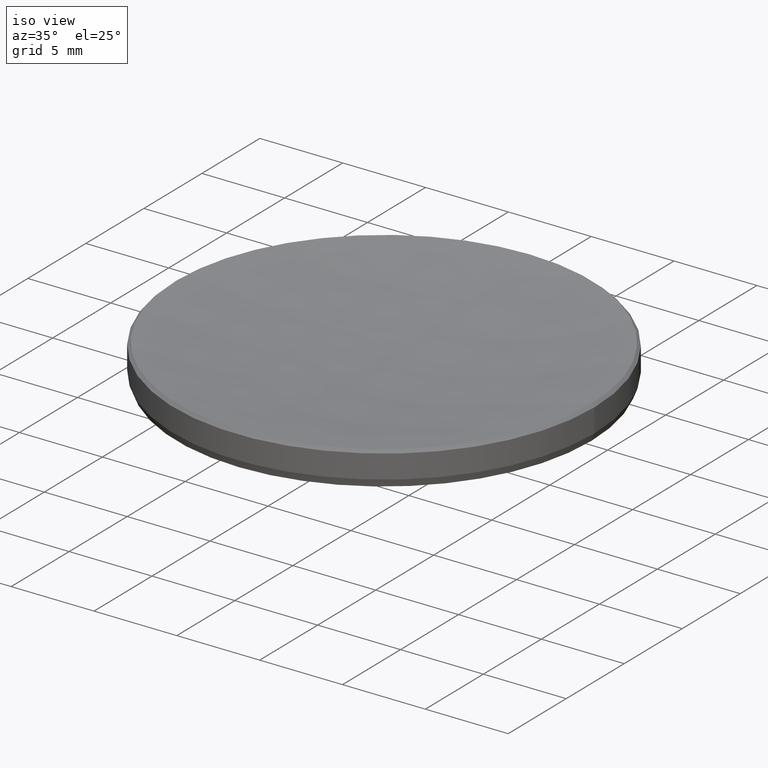
[diagram: clean part render]
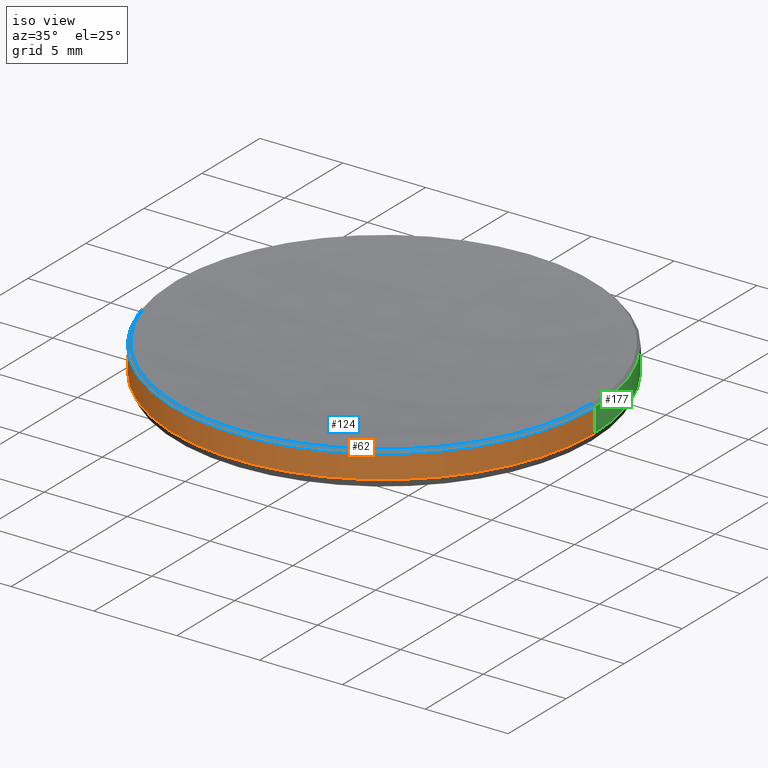
[diagram: same view with three faces highlighted in distinct colors, each labeled with its STEP entity id]
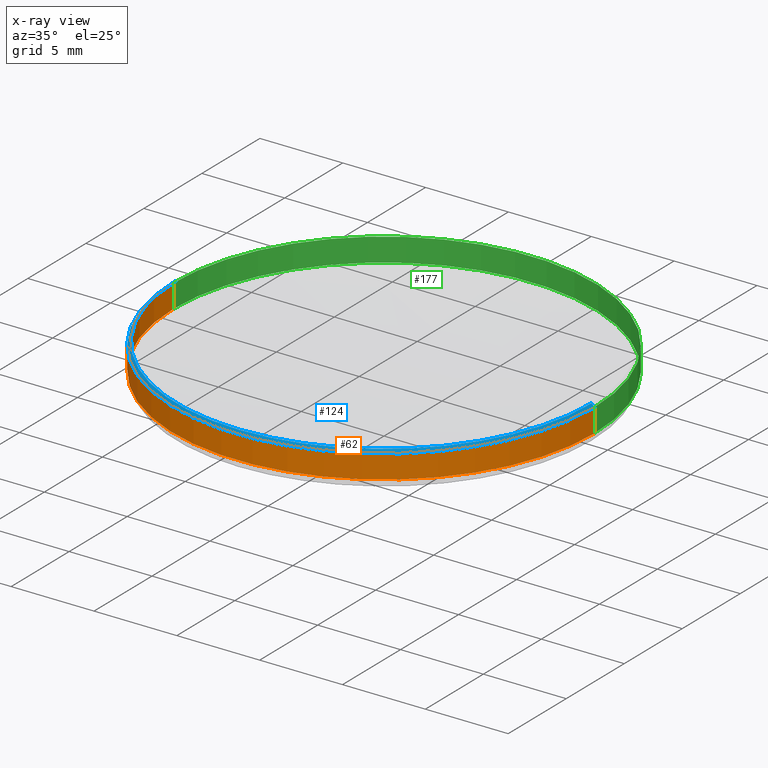
[diagram: x-ray of the same camera — body ghosted, the three highlighted faces saturated]
A machine part, iso view with three faces highlighted in distinct colors.
The next image is the same camera in x-ray (body ghosted, the three faces saturated) — at least one of them is partly hidden behind the body in this view.
Their STEP definitions:

[orange] entity #62 — the highlighted cylindrical surface (partial cylindrical patch) has radius 12.7 mm, axis along (-0, -0, -1).
#12 = DIRECTION ( 'NONE',  ( -1.000000000000000000, 0.000000000000000000, 0.000000000000000000 ) ) ;
#36 = FACE_OUTER_BOUND ( 'NONE', #147, .T. ) ;
#44 = CARTESIAN_POINT ( 'NONE',  ( -12.69999999999999929, 0.000000000000000000, 10.00000000000000000 ) ) ;
#46 = DIRECTION ( 'NONE',  ( 1.000000000000000000, 0.000000000000000000, 0.000000000000000000 ) ) ;
#47 = DIRECTION ( 'NONE',  ( -0.000000000000000000, -0.000000000000000000, -1.000000000000000000 ) ) ;
#51 = ORIENTED_EDGE ( 'NONE', *, *, #286, .T. ) ;
#55 = ORIENTED_EDGE ( 'NONE', *, *, #238, .T. ) ;
#60 = CARTESIAN_POINT ( 'NONE',  ( 12.69999999999999929, 1.555301434917138433E-15, 5.799999999999999822 ) ) ;
#61 = DIRECTION ( 'NONE',  ( -0.000000000000000000, -0.000000000000000000, -1.000000000000000000 ) ) ;
#62 = ADVANCED_FACE ( 'NONE', ( #36 ), #261, .T. ) ;
#69 = AXIS2_PLACEMENT_3D ( 'NONE', #236, #61, #12 ) ;
#70 = CARTESIAN_POINT ( 'NONE',  ( 12.69999999999999929, 1.555301434917138433E-15, 10.00000000000000000 ) ) ;
#71 = CARTESIAN_POINT ( 'NONE',  ( 12.69999999999999929, 1.555301434917138433E-15, 4.382064373895533826 ) ) ;
#90 = LINE ( 'NONE', #70, #94 ) ;
#94 = VECTOR ( 'NONE', #47, 1000.000000000000000 ) ;
#97 = ORIENTED_EDGE ( 'NONE', *, *, #304, .F. ) ;
#102 = AXIS2_PLACEMENT_3D ( 'NONE', #271, #299, #46 ) ;
#115 = DIRECTION ( 'NONE',  ( -1.000000000000000000, 0.000000000000000000, 0.000000000000000000 ) ) ;
#125 = ORIENTED_EDGE ( 'NONE', *, *, #207, .T. ) ;
#137 = DIRECTION ( 'NONE',  ( -0.000000000000000000, -0.000000000000000000, -1.000000000000000000 ) ) ;
#138 = CARTESIAN_POINT ( 'NONE',  ( 0.000000000000000000, 0.000000000000000000, 4.382064373895533826 ) ) ;
#140 = VERTEX_POINT ( 'NONE', #60 ) ;
#144 = VERTEX_POINT ( 'NONE', #71 ) ;
#147 = EDGE_LOOP ( 'NONE', ( #97, #55, #51, #125 ) ) ;
#154 = CARTESIAN_POINT ( 'NONE',  ( -12.69999999999999929, 0.000000000000000000, 4.382064373895533826 ) ) ;
#188 = DIRECTION ( 'NONE',  ( -0.000000000000000000, -0.000000000000000000, 1.000000000000000000 ) ) ;
#193 = VERTEX_POINT ( 'NONE', #154 ) ;
#199 = AXIS2_PLACEMENT_3D ( 'NONE', #138, #188, #115 ) ;
#207 = EDGE_CURVE ( 'NONE', #193, #144, #230, .T. ) ;
#213 = CARTESIAN_POINT ( 'NONE',  ( -12.69999999999999929, 0.000000000000000000, 5.799999999999999822 ) ) ;
#223 = VERTEX_POINT ( 'NONE', #213 ) ;
#230 = CIRCLE ( 'NONE', #199, 12.69999999999999929 ) ;
#236 = CARTESIAN_POINT ( 'NONE',  ( 0.000000000000000000, 0.000000000000000000, 10.00000000000000000 ) ) ;
#238 = EDGE_CURVE ( 'NONE', #140, #223, #285, .T. ) ;
#261 = CYLINDRICAL_SURFACE ( 'NONE', #69, 12.69999999999999929 ) ;
#269 = VECTOR ( 'NONE', #137, 1000.000000000000000 ) ;
#271 = CARTESIAN_POINT ( 'NONE',  ( 0.000000000000000000, 0.000000000000000000, 5.799999999999999822 ) ) ;
#272 = LINE ( 'NONE', #44, #269 ) ;
#285 = CIRCLE ( 'NONE', #102, 12.69999999999999929 ) ;
#286 = EDGE_CURVE ( 'NONE', #223, #193, #272, .T. ) ;
#299 = DIRECTION ( 'NONE',  ( 0.000000000000000000, 0.000000000000000000, -1.000000000000000000 ) ) ;
#304 = EDGE_CURVE ( 'NONE', #140, #144, #90, .T. ) ;

[blue] entity #124 — the highlighted conical surface has half-angle 45 deg.
#7 = DIRECTION ( 'NONE',  ( 0.000000000000000000, 0.000000000000000000, -1.000000000000000000 ) ) ;
#9 = AXIS2_PLACEMENT_3D ( 'NONE', #288, #7, #315 ) ;
#11 = AXIS2_PLACEMENT_3D ( 'NONE', #150, #84, #267 ) ;
#13 = EDGE_CURVE ( 'NONE', #141, #225, #146, .T. ) ;
#25 = VERTEX_POINT ( 'NONE', #260 ) ;
#43 = CARTESIAN_POINT ( 'NONE',  ( 0.000000000000000000, 0.000000000000000000, 5.973125799162120941 ) ) ;
#46 = DIRECTION ( 'NONE',  ( 1.000000000000000000, 0.000000000000000000, 0.000000000000000000 ) ) ;
#60 = CARTESIAN_POINT ( 'NONE',  ( 12.69999999999999929, 1.555301434917138433E-15, 5.799999999999999822 ) ) ;
#84 = DIRECTION ( 'NONE',  ( -0.000000000000000000, -0.000000000000000000, 1.000000000000000000 ) ) ;
#89 = DIRECTION ( 'NONE',  ( -0.000000000000000000, -0.000000000000000000, 1.000000000000000000 ) ) ;
#92 = CARTESIAN_POINT ( 'NONE',  ( -1.534099639337759046E-15, -12.52687420083781511, 5.973125799162120941 ) ) ;
#101 = ORIENTED_EDGE ( 'NONE', *, *, #13, .F. ) ;
#102 = AXIS2_PLACEMENT_3D ( 'NONE', #271, #299, #46 ) ;
#123 = EDGE_LOOP ( 'NONE', ( #282, #101, #257, #332, #169 ) ) ;
#124 = ADVANCED_FACE ( 'NONE', ( #152 ), #153, .T. ) ;
#140 = VERTEX_POINT ( 'NONE', #60 ) ;
#141 = VERTEX_POINT ( 'NONE', #92 ) ;
#143 = VECTOR ( 'NONE', #325, 1000.000000000000000 ) ;
#146 = CIRCLE ( 'NONE', #11, 12.52687420083785419 ) ;
#150 = CARTESIAN_POINT ( 'NONE',  ( 0.000000000000000000, 0.000000000000000000, 5.973125799162120941 ) ) ;
#152 = FACE_OUTER_BOUND ( 'NONE', #123, .T. ) ;
#153 = CONICAL_SURFACE ( 'NONE', #9, 12.52687420083785597, 0.7853981633974733700 ) ;
#158 = EDGE_CURVE ( 'NONE', #25, #141, #205, .T. ) ;
#169 = ORIENTED_EDGE ( 'NONE', *, *, #238, .F. ) ;
#182 = EDGE_CURVE ( 'NONE', #225, #140, #239, .T. ) ;
#205 = CIRCLE ( 'NONE', #301, 12.52687420083785419 ) ;
#212 = DIRECTION ( 'NONE',  ( -0.7071067811865652253, 0.000000000000000000, -0.7071067811865298092 ) ) ;
#213 = CARTESIAN_POINT ( 'NONE',  ( -12.69999999999999929, 0.000000000000000000, 5.799999999999999822 ) ) ;
#215 = LINE ( 'NONE', #302, #326 ) ;
#223 = VERTEX_POINT ( 'NONE', #213 ) ;
#225 = VERTEX_POINT ( 'NONE', #319 ) ;
#237 = DIRECTION ( 'NONE',  ( 1.000000000000000000, 0.000000000000000000, 0.000000000000000000 ) ) ;
#238 = EDGE_CURVE ( 'NONE', #140, #223, #285, .T. ) ;
#239 = LINE ( 'NONE', #245, #143 ) ;
#244 = EDGE_CURVE ( 'NONE', #25, #223, #215, .T. ) ;
#245 = CARTESIAN_POINT ( 'NONE',  ( 12.52687420083785597, 1.534099639337763779E-15, 5.973125799162135152 ) ) ;
#257 = ORIENTED_EDGE ( 'NONE', *, *, #158, .F. ) ;
#260 = CARTESIAN_POINT ( 'NONE',  ( -12.52687420083785419, 0.000000000000000000, 5.973125799162120941 ) ) ;
#267 = DIRECTION ( 'NONE',  ( 1.000000000000000000, 0.000000000000000000, 0.000000000000000000 ) ) ;
#271 = CARTESIAN_POINT ( 'NONE',  ( 0.000000000000000000, 0.000000000000000000, 5.799999999999999822 ) ) ;
#282 = ORIENTED_EDGE ( 'NONE', *, *, #182, .F. ) ;
#285 = CIRCLE ( 'NONE', #102, 12.69999999999999929 ) ;
#288 = CARTESIAN_POINT ( 'NONE',  ( 0.000000000000000000, 0.000000000000000000, 5.973125799162135152 ) ) ;
#299 = DIRECTION ( 'NONE',  ( 0.000000000000000000, 0.000000000000000000, -1.000000000000000000 ) ) ;
#301 = AXIS2_PLACEMENT_3D ( 'NONE', #43, #89, #237 ) ;
#302 = CARTESIAN_POINT ( 'NONE',  ( -12.52687420083785597, 0.000000000000000000, 5.973125799162135152 ) ) ;
#315 = DIRECTION ( 'NONE',  ( -1.000000000000000000, 0.000000000000000000, 0.000000000000000000 ) ) ;
#319 = CARTESIAN_POINT ( 'NONE',  ( 12.52687420083785419, 1.544700537127451106E-15, 5.973125799162120941 ) ) ;
#325 = DIRECTION ( 'NONE',  ( 0.7071067811865652253, 8.659560562355149795E-17, -0.7071067811865298092 ) ) ;
#326 = VECTOR ( 'NONE', #212, 1000.000000000000000 ) ;
#332 = ORIENTED_EDGE ( 'NONE', *, *, #244, .T. ) ;

[green] entity #177 — the highlighted cylindrical surface (partial cylindrical patch) has radius 12.7 mm, axis along (-0, -0, -1).
#2 = ORIENTED_EDGE ( 'NONE', *, *, #304, .T. ) ;
#4 = AXIS2_PLACEMENT_3D ( 'NONE', #67, #183, #42 ) ;
#26 = ORIENTED_EDGE ( 'NONE', *, *, #286, .F. ) ;
#42 = DIRECTION ( 'NONE',  ( 1.000000000000000000, 0.000000000000000000, 0.000000000000000000 ) ) ;
#44 = CARTESIAN_POINT ( 'NONE',  ( -12.69999999999999929, 0.000000000000000000, 10.00000000000000000 ) ) ;
#45 = DIRECTION ( 'NONE',  ( -0.000000000000000000, -0.000000000000000000, -1.000000000000000000 ) ) ;
#47 = DIRECTION ( 'NONE',  ( -0.000000000000000000, -0.000000000000000000, -1.000000000000000000 ) ) ;
#60 = CARTESIAN_POINT ( 'NONE',  ( 12.69999999999999929, 1.555301434917138433E-15, 5.799999999999999822 ) ) ;
#67 = CARTESIAN_POINT ( 'NONE',  ( 0.000000000000000000, 0.000000000000000000, 5.799999999999999822 ) ) ;
#70 = CARTESIAN_POINT ( 'NONE',  ( 12.69999999999999929, 1.555301434917138433E-15, 10.00000000000000000 ) ) ;
#71 = CARTESIAN_POINT ( 'NONE',  ( 12.69999999999999929, 1.555301434917138433E-15, 4.382064373895533826 ) ) ;
#79 = AXIS2_PLACEMENT_3D ( 'NONE', #95, #276, #273 ) ;
#90 = LINE ( 'NONE', #70, #94 ) ;
#94 = VECTOR ( 'NONE', #47, 1000.000000000000000 ) ;
#95 = CARTESIAN_POINT ( 'NONE',  ( 0.000000000000000000, 0.000000000000000000, 4.382064373895533826 ) ) ;
#118 = CIRCLE ( 'NONE', #4, 12.69999999999999929 ) ;
#136 = FACE_OUTER_BOUND ( 'NONE', #198, .T. ) ;
#137 = DIRECTION ( 'NONE',  ( -0.000000000000000000, -0.000000000000000000, -1.000000000000000000 ) ) ;
#140 = VERTEX_POINT ( 'NONE', #60 ) ;
#144 = VERTEX_POINT ( 'NONE', #71 ) ;
#145 = EDGE_CURVE ( 'NONE', #144, #193, #168, .T. ) ;
#154 = CARTESIAN_POINT ( 'NONE',  ( -12.69999999999999929, 0.000000000000000000, 4.382064373895533826 ) ) ;
#166 = ORIENTED_EDGE ( 'NONE', *, *, #191, .T. ) ;
#168 = CIRCLE ( 'NONE', #79, 12.69999999999999929 ) ;
#171 = ORIENTED_EDGE ( 'NONE', *, *, #145, .T. ) ;
#177 = ADVANCED_FACE ( 'NONE', ( #136 ), #217, .T. ) ;
#183 = DIRECTION ( 'NONE',  ( 0.000000000000000000, 0.000000000000000000, -1.000000000000000000 ) ) ;
#186 = AXIS2_PLACEMENT_3D ( 'NONE', #322, #45, #270 ) ;
#191 = EDGE_CURVE ( 'NONE', #223, #140, #118, .T. ) ;
#193 = VERTEX_POINT ( 'NONE', #154 ) ;
#198 = EDGE_LOOP ( 'NONE', ( #166, #2, #171, #26 ) ) ;
#213 = CARTESIAN_POINT ( 'NONE',  ( -12.69999999999999929, 0.000000000000000000, 5.799999999999999822 ) ) ;
#217 = CYLINDRICAL_SURFACE ( 'NONE', #186, 12.69999999999999929 ) ;
#223 = VERTEX_POINT ( 'NONE', #213 ) ;
#269 = VECTOR ( 'NONE', #137, 1000.000000000000000 ) ;
#270 = DIRECTION ( 'NONE',  ( -1.000000000000000000, 0.000000000000000000, 0.000000000000000000 ) ) ;
#272 = LINE ( 'NONE', #44, #269 ) ;
#273 = DIRECTION ( 'NONE',  ( -1.000000000000000000, 0.000000000000000000, 0.000000000000000000 ) ) ;
#276 = DIRECTION ( 'NONE',  ( -0.000000000000000000, -0.000000000000000000, 1.000000000000000000 ) ) ;
#286 = EDGE_CURVE ( 'NONE', #223, #193, #272, .T. ) ;
#304 = EDGE_CURVE ( 'NONE', #140, #144, #90, .T. ) ;
#322 = CARTESIAN_POINT ( 'NONE',  ( 0.000000000000000000, 0.000000000000000000, 10.00000000000000000 ) ) ;